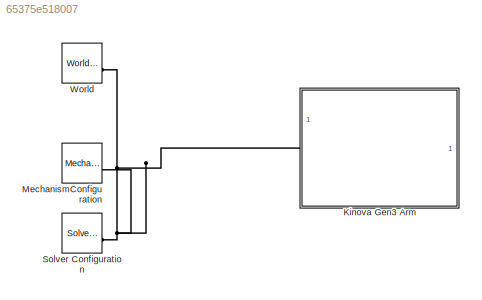
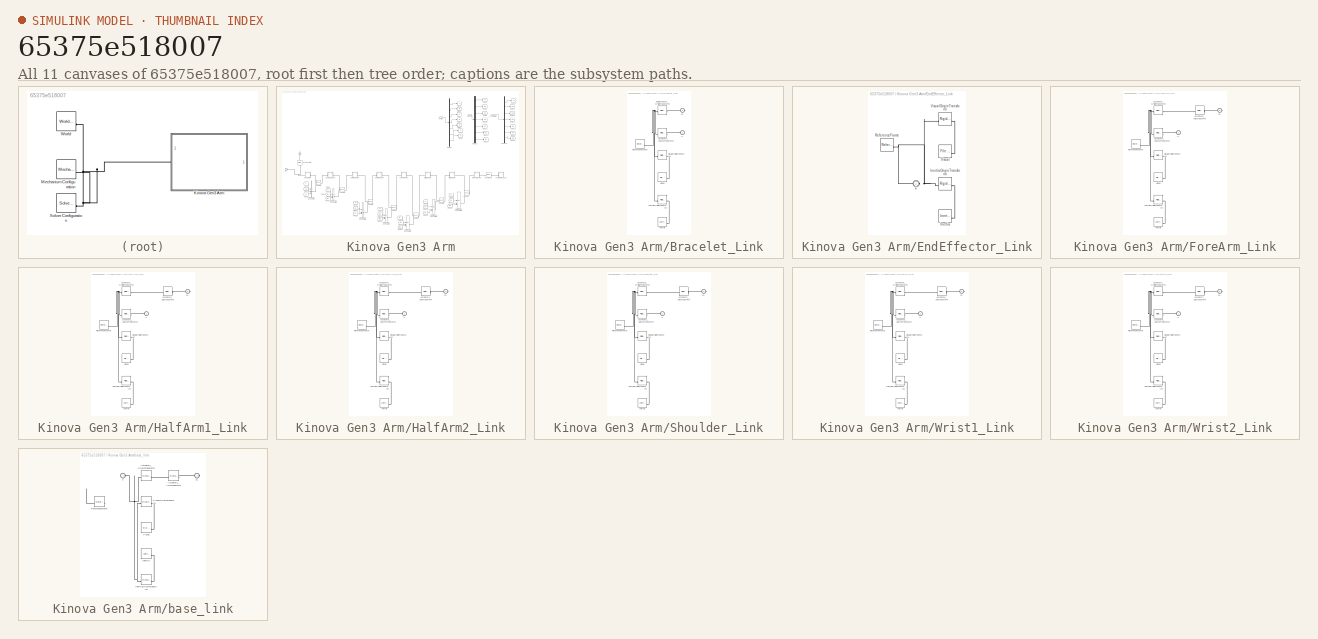
[diagram: thumbnail index - all 11 canvases of the model, root first then tree order]
MODEL slx_65375e518007
KIND model
CONFIG AbsTol = 1e-3
CONFIG EnableMultiTasking = off
CONFIG FixedStep = auto
CONFIG MaxStep = auto
CONFIG MinStep = auto
CONFIG RelTol = 1e-3
CONFIG SampleTimeConstraint = Unconstrained
CONFIG SolverName = ode23t
CONFIG StartTime = 0.0
CONFIG StopTime = 20
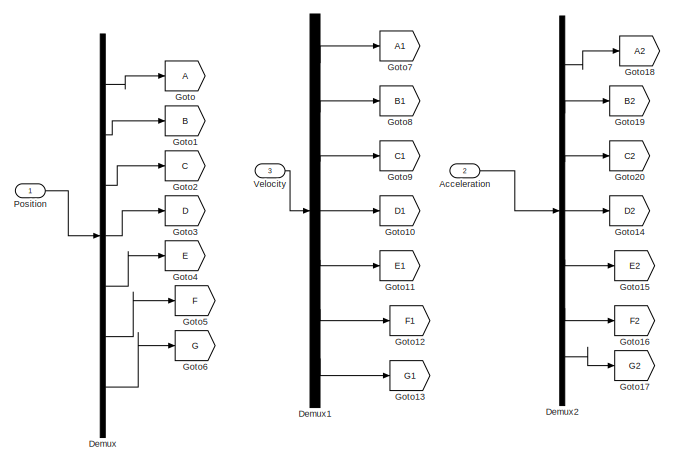
[diagram: Kinova Gen3 Arm - part 1/3, top right region]
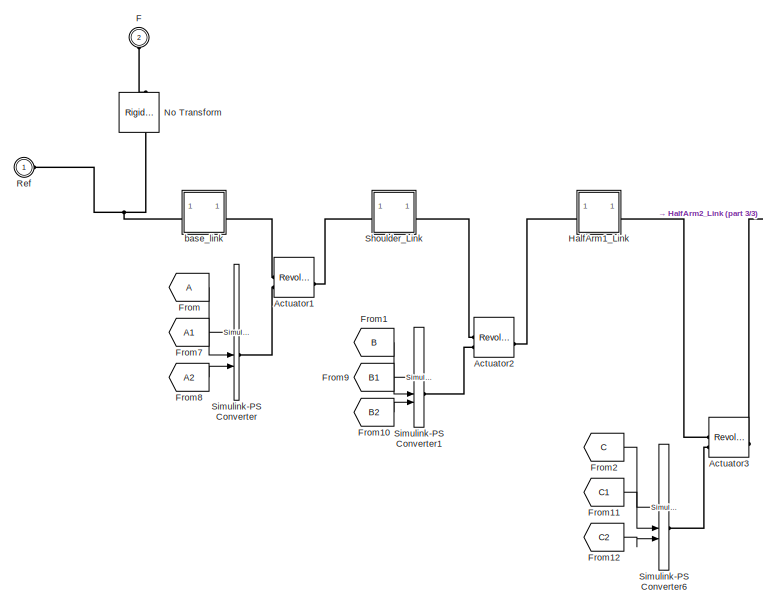
[diagram: Kinova Gen3 Arm - part 2/3, middle left region]
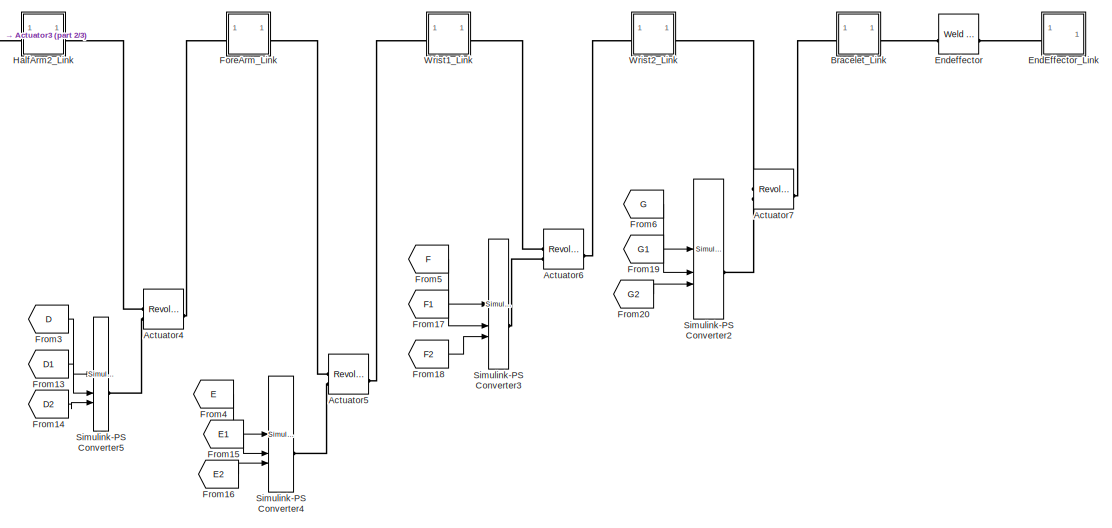
[diagram: Kinova Gen3 Arm - part 3/3, bottom right region]
BLOCK [SubSystem] Kinova Gen3 Arm
  PortSchema = {"entries":[{"content":{"sides":[{"content":{"connectorIds":["LConn1","LConn2","In1","In2","In3"]},"type":"ConnectorPlacement.EquallySpacedRectSide","uuid":"fd4ff3f1-2171-4bf8-9495-f9a61fe79dd1"},{"content":{"side":"RIGHT"},"type":"ConnectorPlacement.EquallySpacedRectSide","uuid":"35ab6517-a5c7-461c-baa3-bdccce69e86b"},{"content":{"side":"TOP"},"type":"ConnectorPlacement.EquallySpacedRectSide","uu...<+228ch>
BLOCK [Inport] Kinova Gen3 Arm/Acceleration
  Port = 2
BLOCK [Reference] Kinova Gen3 Arm/Actuator1  REF=sm_lib/Joints/Revolute Joint
  SourceBlock = sm_lib/Joints/Revolute Joint
  SourceType = Revolute Joint
BLOCK [Reference] Kinova Gen3 Arm/Actuator2  REF=sm_lib/Joints/Revolute Joint
  SourceBlock = sm_lib/Joints/Revolute Joint
  SourceType = Revolute Joint
BLOCK [Reference] Kinova Gen3 Arm/Actuator3  REF=sm_lib/Joints/Revolute Joint
  SourceBlock = sm_lib/Joints/Revolute Joint
  SourceType = Revolute Joint
BLOCK [Reference] Kinova Gen3 Arm/Actuator4  REF=sm_lib/Joints/Revolute Joint
  SourceBlock = sm_lib/Joints/Revolute Joint
  SourceType = Revolute Joint
BLOCK [Reference] Kinova Gen3 Arm/Actuator5  REF=sm_lib/Joints/Revolute Joint
  SourceBlock = sm_lib/Joints/Revolute Joint
  SourceType = Revolute Joint
BLOCK [Reference] Kinova Gen3 Arm/Actuator6  REF=sm_lib/Joints/Revolute Joint
  SourceBlock = sm_lib/Joints/Revolute Joint
  SourceType = Revolute Joint
BLOCK [Reference] Kinova Gen3 Arm/Actuator7  REF=sm_lib/Joints/Revolute Joint
  SourceBlock = sm_lib/Joints/Revolute Joint
  SourceType = Revolute Joint
BLOCK [SubSystem] Kinova Gen3 Arm/Bracelet_Link
BLOCK [Reference] Kinova Gen3 Arm/Bracelet_Link/Actuator7_AxisInvTransform  REF=sm_lib/Frames and
Transforms/Rigid
Transform
  SourceBlock = sm_lib/Frames and\nTransforms/Rigid\nTransform
  SourceType = Rigid\nTransform
BLOCK [Reference] Kinova Gen3 Arm/Bracelet_Link/Endeffector_OriginTransform  REF=sm_lib/Frames and
Transforms/Rigid
Transform
  SourceBlock = sm_lib/Frames and\nTransforms/Rigid\nTransform
  SourceType = Rigid\nTransform
BLOCK [PMIOPort] Kinova Gen3 Arm/Bracelet_Link/F
  Side = Left
BLOCK [PMIOPort] Kinova Gen3 Arm/Bracelet_Link/F1
  Port = 2
  Side = Right
BLOCK [Reference] Kinova Gen3 Arm/Bracelet_Link/Inertia  REF=sm_lib/Body Elements/Inertia
  SourceBlock = sm_lib/Body Elements/Inertia
  SourceType = Inertia
BLOCK [Reference] Kinova Gen3 Arm/Bracelet_Link/InertiaOriginTransform  REF=sm_lib/Frames and
Transforms/Rigid
Transform
  SourceBlock = sm_lib/Frames and\nTransforms/Rigid\nTransform
  SourceType = Rigid\nTransform
BLOCK [Reference] Kinova Gen3 Arm/Bracelet_Link/ReferenceFrame  REF=sm_lib/Frames and
Transforms/Reference
Frame
  SourceBlock = sm_lib/Frames and\nTransforms/Reference\nFrame
  SourceType = Reference\nFrame
BLOCK [Reference] Kinova Gen3 Arm/Bracelet_Link/Visual  REF=sm_lib/Body Elements/File Solid
  SourceBlock = sm_lib/Body Elements/File Solid
  SourceType = File Solid
BLOCK [Reference] Kinova Gen3 Arm/Bracelet_Link/VisualOriginTransform  REF=sm_lib/Frames and
Transforms/Rigid
Transform
  SourceBlock = sm_lib/Frames and\nTransforms/Rigid\nTransform
  SourceType = Rigid\nTransform
BLOCK [Demux] Kinova Gen3 Arm/Demux
  Outputs = 7
BLOCK [Demux] Kinova Gen3 Arm/Demux1
  Outputs = 7
BLOCK [Demux] Kinova Gen3 Arm/Demux2
  Outputs = 7
BLOCK [SubSystem] Kinova Gen3 Arm/EndEffector_Link
BLOCK [PMIOPort] Kinova Gen3 Arm/EndEffector_Link/F
  Side = Left
BLOCK [Reference] Kinova Gen3 Arm/EndEffector_Link/Inertia  REF=sm_lib/Body Elements/Inertia
  SourceBlock = sm_lib/Body Elements/Inertia
  SourceType = Inertia
BLOCK [Reference] Kinova Gen3 Arm/EndEffector_Link/InertiaOriginTransform  REF=sm_lib/Frames and
Transforms/Rigid
Transform
  SourceBlock = sm_lib/Frames and\nTransforms/Rigid\nTransform
  SourceType = Rigid\nTransform
BLOCK [Reference] Kinova Gen3 Arm/EndEffector_Link/ReferenceFrame  REF=sm_lib/Frames and
Transforms/Reference
Frame
  SourceBlock = sm_lib/Frames and\nTransforms/Reference\nFrame
  SourceType = Reference\nFrame
BLOCK [Reference] Kinova Gen3 Arm/EndEffector_Link/Visual  REF=sm_lib/Body Elements/File Solid
  SourceBlock = sm_lib/Body Elements/File Solid
  SourceType = File Solid
BLOCK [Reference] Kinova Gen3 Arm/EndEffector_Link/VisualOriginTransform  REF=sm_lib/Frames and
Transforms/Rigid
Transform
  SourceBlock = sm_lib/Frames and\nTransforms/Rigid\nTransform
  SourceType = Rigid\nTransform
BLOCK [Reference] Kinova Gen3 Arm/Endeffector  REF=sm_lib/Joints/Weld Joint
  SourceBlock = sm_lib/Joints/Weld Joint
  SourceType = Weld Joint
BLOCK [PMIOPort] Kinova Gen3 Arm/F
  NameLocation = right
  Port = 2
  Side = Left
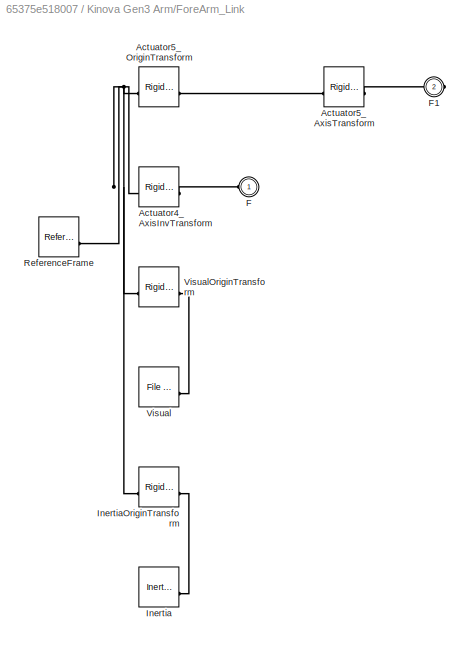
BLOCK [SubSystem] Kinova Gen3 Arm/ForeArm_Link
BLOCK [Reference] Kinova Gen3 Arm/ForeArm_Link/Actuator4_AxisInvTransform  REF=sm_lib/Frames and
Transforms/Rigid
Transform
  SourceBlock = sm_lib/Frames and\nTransforms/Rigid\nTransform
  SourceType = Rigid\nTransform
BLOCK [Reference] Kinova Gen3 Arm/ForeArm_Link/Actuator5_AxisTransform  REF=sm_lib/Frames and
Transforms/Rigid
Transform
  SourceBlock = sm_lib/Frames and\nTransforms/Rigid\nTransform
  SourceType = Rigid\nTransform
BLOCK [Reference] Kinova Gen3 Arm/ForeArm_Link/Actuator5_OriginTransform  REF=sm_lib/Frames and
Transforms/Rigid
Transform
  SourceBlock = sm_lib/Frames and\nTransforms/Rigid\nTransform
  SourceType = Rigid\nTransform
BLOCK [PMIOPort] Kinova Gen3 Arm/ForeArm_Link/F
  Side = Left
BLOCK [PMIOPort] Kinova Gen3 Arm/ForeArm_Link/F1
  Port = 2
  Side = Right
BLOCK [Reference] Kinova Gen3 Arm/ForeArm_Link/Inertia  REF=sm_lib/Body Elements/Inertia
  SourceBlock = sm_lib/Body Elements/Inertia
  SourceType = Inertia
BLOCK [Reference] Kinova Gen3 Arm/ForeArm_Link/InertiaOriginTransform  REF=sm_lib/Frames and
Transforms/Rigid
Transform
  SourceBlock = sm_lib/Frames and\nTransforms/Rigid\nTransform
  SourceType = Rigid\nTransform
BLOCK [Reference] Kinova Gen3 Arm/ForeArm_Link/ReferenceFrame  REF=sm_lib/Frames and
Transforms/Reference
Frame
  SourceBlock = sm_lib/Frames and\nTransforms/Reference\nFrame
  SourceType = Reference\nFrame
BLOCK [Reference] Kinova Gen3 Arm/ForeArm_Link/Visual  REF=sm_lib/Body Elements/File Solid
  SourceBlock = sm_lib/Body Elements/File Solid
  SourceType = File Solid
BLOCK [Reference] Kinova Gen3 Arm/ForeArm_Link/VisualOriginTransform  REF=sm_lib/Frames and
Transforms/Rigid
Transform
  SourceBlock = sm_lib/Frames and\nTransforms/Rigid\nTransform
  SourceType = Rigid\nTransform
BLOCK [From] Kinova Gen3 Arm/From
BLOCK [From] Kinova Gen3 Arm/From1
  GotoTag = B
BLOCK [From] Kinova Gen3 Arm/From10
  GotoTag = B2
BLOCK [From] Kinova Gen3 Arm/From11
  GotoTag = C1
BLOCK [From] Kinova Gen3 Arm/From12
  GotoTag = C2
BLOCK [From] Kinova Gen3 Arm/From13
  GotoTag = D1
BLOCK [From] Kinova Gen3 Arm/From14
  GotoTag = D2
BLOCK [From] Kinova Gen3 Arm/From15
  GotoTag = E1
BLOCK [From] Kinova Gen3 Arm/From16
  GotoTag = E2
BLOCK [From] Kinova Gen3 Arm/From17
  GotoTag = F1
BLOCK [From] Kinova Gen3 Arm/From18
  GotoTag = F2
BLOCK [From] Kinova Gen3 Arm/From19
  GotoTag = G1
BLOCK [From] Kinova Gen3 Arm/From2
  GotoTag = C
BLOCK [From] Kinova Gen3 Arm/From20
  GotoTag = G2
BLOCK [From] Kinova Gen3 Arm/From3
  GotoTag = D
BLOCK [From] Kinova Gen3 Arm/From4
  GotoTag = E
BLOCK [From] Kinova Gen3 Arm/From5
  GotoTag = F
BLOCK [From] Kinova Gen3 Arm/From6
  GotoTag = G
BLOCK [From] Kinova Gen3 Arm/From7
  GotoTag = A1
BLOCK [From] Kinova Gen3 Arm/From8
  GotoTag = A2
BLOCK [From] Kinova Gen3 Arm/From9
  GotoTag = B1
BLOCK [Goto] Kinova Gen3 Arm/Goto
BLOCK [Goto] Kinova Gen3 Arm/Goto1
  GotoTag = B
BLOCK [Goto] Kinova Gen3 Arm/Goto10
  GotoTag = D1
BLOCK [Goto] Kinova Gen3 Arm/Goto11
  GotoTag = E1
BLOCK [Goto] Kinova Gen3 Arm/Goto12
  GotoTag = F1
BLOCK [Goto] Kinova Gen3 Arm/Goto13
  GotoTag = G1
BLOCK [Goto] Kinova Gen3 Arm/Goto14
  GotoTag = D2
BLOCK [Goto] Kinova Gen3 Arm/Goto15
  GotoTag = E2
BLOCK [Goto] Kinova Gen3 Arm/Goto16
  GotoTag = F2
BLOCK [Goto] Kinova Gen3 Arm/Goto17
  GotoTag = G2
BLOCK [Goto] Kinova Gen3 Arm/Goto18
  GotoTag = A2
BLOCK [Goto] Kinova Gen3 Arm/Goto19
  GotoTag = B2
BLOCK [Goto] Kinova Gen3 Arm/Goto2
  GotoTag = C
BLOCK [Goto] Kinova Gen3 Arm/Goto20
  GotoTag = C2
BLOCK [Goto] Kinova Gen3 Arm/Goto3
  GotoTag = D
BLOCK [Goto] Kinova Gen3 Arm/Goto4
  GotoTag = E
BLOCK [Goto] Kinova Gen3 Arm/Goto5
  GotoTag = F
BLOCK [Goto] Kinova Gen3 Arm/Goto6
  GotoTag = G
BLOCK [Goto] Kinova Gen3 Arm/Goto7
  GotoTag = A1
BLOCK [Goto] Kinova Gen3 Arm/Goto8
  GotoTag = B1
BLOCK [Goto] Kinova Gen3 Arm/Goto9
  GotoTag = C1
BLOCK [SubSystem] Kinova Gen3 Arm/HalfArm1_Link
BLOCK [Reference] Kinova Gen3 Arm/HalfArm1_Link/Actuator2_AxisInvTransform  REF=sm_lib/Frames and
Transforms/Rigid
Transform
  SourceBlock = sm_lib/Frames and\nTransforms/Rigid\nTransform
  SourceType = Rigid\nTransform
BLOCK [Reference] Kinova Gen3 Arm/HalfArm1_Link/Actuator3_AxisTransform  REF=sm_lib/Frames and
Transforms/Rigid
Transform
  SourceBlock = sm_lib/Frames and\nTransforms/Rigid\nTransform
  SourceType = Rigid\nTransform
BLOCK [Reference] Kinova Gen3 Arm/HalfArm1_Link/Actuator3_OriginTransform  REF=sm_lib/Frames and
Transforms/Rigid
Transform
  SourceBlock = sm_lib/Frames and\nTransforms/Rigid\nTransform
  SourceType = Rigid\nTransform
BLOCK [PMIOPort] Kinova Gen3 Arm/HalfArm1_Link/F
  Side = Left
BLOCK [PMIOPort] Kinova Gen3 Arm/HalfArm1_Link/F1
  Port = 2
  Side = Right
BLOCK [Reference] Kinova Gen3 Arm/HalfArm1_Link/Inertia  REF=sm_lib/Body Elements/Inertia
  SourceBlock = sm_lib/Body Elements/Inertia
  SourceType = Inertia
BLOCK [Reference] Kinova Gen3 Arm/HalfArm1_Link/InertiaOriginTransform  REF=sm_lib/Frames and
Transforms/Rigid
Transform
  SourceBlock = sm_lib/Frames and\nTransforms/Rigid\nTransform
  SourceType = Rigid\nTransform
BLOCK [Reference] Kinova Gen3 Arm/HalfArm1_Link/ReferenceFrame  REF=sm_lib/Frames and
Transforms/Reference
Frame
  SourceBlock = sm_lib/Frames and\nTransforms/Reference\nFrame
  SourceType = Reference\nFrame
BLOCK [Reference] Kinova Gen3 Arm/HalfArm1_Link/Visual  REF=sm_lib/Body Elements/File Solid
  SourceBlock = sm_lib/Body Elements/File Solid
  SourceType = File Solid
BLOCK [Reference] Kinova Gen3 Arm/HalfArm1_Link/VisualOriginTransform  REF=sm_lib/Frames and
Transforms/Rigid
Transform
  SourceBlock = sm_lib/Frames and\nTransforms/Rigid\nTransform
  SourceType = Rigid\nTransform
BLOCK [SubSystem] Kinova Gen3 Arm/HalfArm2_Link
BLOCK [Reference] Kinova Gen3 Arm/HalfArm2_Link/Actuator3_AxisInvTransform  REF=sm_lib/Frames and
Transforms/Rigid
Transform
  SourceBlock = sm_lib/Frames and\nTransforms/Rigid\nTransform
  SourceType = Rigid\nTransform
BLOCK [Reference] Kinova Gen3 Arm/HalfArm2_Link/Actuator4_AxisTransform  REF=sm_lib/Frames and
Transforms/Rigid
Transform
  SourceBlock = sm_lib/Frames and\nTransforms/Rigid\nTransform
  SourceType = Rigid\nTransform
BLOCK [Reference] Kinova Gen3 Arm/HalfArm2_Link/Actuator4_OriginTransform  REF=sm_lib/Frames and
Transforms/Rigid
Transform
  SourceBlock = sm_lib/Frames and\nTransforms/Rigid\nTransform
  SourceType = Rigid\nTransform
BLOCK [PMIOPort] Kinova Gen3 Arm/HalfArm2_Link/F
  Side = Left
BLOCK [PMIOPort] Kinova Gen3 Arm/HalfArm2_Link/F1
  Port = 2
  Side = Right
BLOCK [Reference] Kinova Gen3 Arm/HalfArm2_Link/Inertia  REF=sm_lib/Body Elements/Inertia
  SourceBlock = sm_lib/Body Elements/Inertia
  SourceType = Inertia
BLOCK [Reference] Kinova Gen3 Arm/HalfArm2_Link/InertiaOriginTransform  REF=sm_lib/Frames and
Transforms/Rigid
Transform
  SourceBlock = sm_lib/Frames and\nTransforms/Rigid\nTransform
  SourceType = Rigid\nTransform
BLOCK [Reference] Kinova Gen3 Arm/HalfArm2_Link/ReferenceFrame  REF=sm_lib/Frames and
Transforms/Reference
Frame
  SourceBlock = sm_lib/Frames and\nTransforms/Reference\nFrame
  SourceType = Reference\nFrame
BLOCK [Reference] Kinova Gen3 Arm/HalfArm2_Link/Visual  REF=sm_lib/Body Elements/File Solid
  SourceBlock = sm_lib/Body Elements/File Solid
  SourceType = File Solid
BLOCK [Reference] Kinova Gen3 Arm/HalfArm2_Link/VisualOriginTransform  REF=sm_lib/Frames and
Transforms/Rigid
Transform
  SourceBlock = sm_lib/Frames and\nTransforms/Rigid\nTransform
  SourceType = Rigid\nTransform
BLOCK [Reference] Kinova Gen3 Arm/No Transform  REF=sm_lib/Frames and
Transforms/Rigid
Transform
  NameLocation = right
  SourceBlock = sm_lib/Frames and\nTransforms/Rigid\nTransform
  SourceType = Rigid\nTransform
BLOCK [Inport] Kinova Gen3 Arm/Position
BLOCK [PMIOPort] Kinova Gen3 Arm/Ref
  NameLocation = top
  Side = Left
BLOCK [SubSystem] Kinova Gen3 Arm/Shoulder_Link
BLOCK [Reference] Kinova Gen3 Arm/Shoulder_Link/Actuator1_AxisInvTransform  REF=sm_lib/Frames and
Transforms/Rigid
Transform
  SourceBlock = sm_lib/Frames and\nTransforms/Rigid\nTransform
  SourceType = Rigid\nTransform
BLOCK [Reference] Kinova Gen3 Arm/Shoulder_Link/Actuator2_AxisTransform  REF=sm_lib/Frames and
Transforms/Rigid
Transform
  SourceBlock = sm_lib/Frames and\nTransforms/Rigid\nTransform
  SourceType = Rigid\nTransform
BLOCK [Reference] Kinova Gen3 Arm/Shoulder_Link/Actuator2_OriginTransform  REF=sm_lib/Frames and
Transforms/Rigid
Transform
  SourceBlock = sm_lib/Frames and\nTransforms/Rigid\nTransform
  SourceType = Rigid\nTransform
BLOCK [PMIOPort] Kinova Gen3 Arm/Shoulder_Link/F
  Side = Left
BLOCK [PMIOPort] Kinova Gen3 Arm/Shoulder_Link/F1
  Port = 2
  Side = Right
BLOCK [Reference] Kinova Gen3 Arm/Shoulder_Link/Inertia  REF=sm_lib/Body Elements/Inertia
  SourceBlock = sm_lib/Body Elements/Inertia
  SourceType = Inertia
BLOCK [Reference] Kinova Gen3 Arm/Shoulder_Link/InertiaOriginTransform  REF=sm_lib/Frames and
Transforms/Rigid
Transform
  SourceBlock = sm_lib/Frames and\nTransforms/Rigid\nTransform
  SourceType = Rigid\nTransform
BLOCK [Reference] Kinova Gen3 Arm/Shoulder_Link/ReferenceFrame  REF=sm_lib/Frames and
Transforms/Reference
Frame
  SourceBlock = sm_lib/Frames and\nTransforms/Reference\nFrame
  SourceType = Reference\nFrame
BLOCK [Reference] Kinova Gen3 Arm/Shoulder_Link/Visual  REF=sm_lib/Body Elements/File Solid
  SourceBlock = sm_lib/Body Elements/File Solid
  SourceType = File Solid
BLOCK [Reference] Kinova Gen3 Arm/Shoulder_Link/VisualOriginTransform  REF=sm_lib/Frames and
Transforms/Rigid
Transform
  SourceBlock = sm_lib/Frames and\nTransforms/Rigid\nTransform
  SourceType = Rigid\nTransform
BLOCK [Reference] Kinova Gen3 Arm/Simulink-PS Converter  REF=nesl_utility/Simulink-PS
Converter
  SourceBlock = nesl_utility/Simulink-PS\nConverter
  SourceType = Simulink-PS\nConverter
BLOCK [Reference] Kinova Gen3 Arm/Simulink-PS Converter1  REF=nesl_utility/Simulink-PS
Converter
  SourceBlock = nesl_utility/Simulink-PS\nConverter
  SourceType = Simulink-PS\nConverter
BLOCK [Reference] Kinova Gen3 Arm/Simulink-PS Converter2  REF=nesl_utility/Simulink-PS
Converter
  SourceBlock = nesl_utility/Simulink-PS\nConverter
  SourceType = Simulink-PS\nConverter
BLOCK [Reference] Kinova Gen3 Arm/Simulink-PS Converter3  REF=nesl_utility/Simulink-PS
Converter
  SourceBlock = nesl_utility/Simulink-PS\nConverter
  SourceType = Simulink-PS\nConverter
BLOCK [Reference] Kinova Gen3 Arm/Simulink-PS Converter4  REF=nesl_utility/Simulink-PS
Converter
  SourceBlock = nesl_utility/Simulink-PS\nConverter
  SourceType = Simulink-PS\nConverter
BLOCK [Reference] Kinova Gen3 Arm/Simulink-PS Converter5  REF=nesl_utility/Simulink-PS
Converter
  SourceBlock = nesl_utility/Simulink-PS\nConverter
  SourceType = Simulink-PS\nConverter
BLOCK [Reference] Kinova Gen3 Arm/Simulink-PS Converter6  REF=nesl_utility/Simulink-PS
Converter
  SourceBlock = nesl_utility/Simulink-PS\nConverter
  SourceType = Simulink-PS\nConverter
BLOCK [Inport] Kinova Gen3 Arm/Velocity
  Port = 3
BLOCK [SubSystem] Kinova Gen3 Arm/Wrist1_Link
BLOCK [Reference] Kinova Gen3 Arm/Wrist1_Link/Actuator5_AxisInvTransform  REF=sm_lib/Frames and
Transforms/Rigid
Transform
  SourceBlock = sm_lib/Frames and\nTransforms/Rigid\nTransform
  SourceType = Rigid\nTransform
BLOCK [Reference] Kinova Gen3 Arm/Wrist1_Link/Actuator6_AxisTransform  REF=sm_lib/Frames and
Transforms/Rigid
Transform
  SourceBlock = sm_lib/Frames and\nTransforms/Rigid\nTransform
  SourceType = Rigid\nTransform
BLOCK [Reference] Kinova Gen3 Arm/Wrist1_Link/Actuator6_OriginTransform  REF=sm_lib/Frames and
Transforms/Rigid
Transform
  SourceBlock = sm_lib/Frames and\nTransforms/Rigid\nTransform
  SourceType = Rigid\nTransform
BLOCK [PMIOPort] Kinova Gen3 Arm/Wrist1_Link/F
  Side = Left
BLOCK [PMIOPort] Kinova Gen3 Arm/Wrist1_Link/F1
  Port = 2
  Side = Right
BLOCK [Reference] Kinova Gen3 Arm/Wrist1_Link/Inertia  REF=sm_lib/Body Elements/Inertia
  SourceBlock = sm_lib/Body Elements/Inertia
  SourceType = Inertia
BLOCK [Reference] Kinova Gen3 Arm/Wrist1_Link/InertiaOriginTransform  REF=sm_lib/Frames and
Transforms/Rigid
Transform
  SourceBlock = sm_lib/Frames and\nTransforms/Rigid\nTransform
  SourceType = Rigid\nTransform
BLOCK [Reference] Kinova Gen3 Arm/Wrist1_Link/ReferenceFrame  REF=sm_lib/Frames and
Transforms/Reference
Frame
  SourceBlock = sm_lib/Frames and\nTransforms/Reference\nFrame
  SourceType = Reference\nFrame
BLOCK [Reference] Kinova Gen3 Arm/Wrist1_Link/Visual  REF=sm_lib/Body Elements/File Solid
  SourceBlock = sm_lib/Body Elements/File Solid
  SourceType = File Solid
BLOCK [Reference] Kinova Gen3 Arm/Wrist1_Link/VisualOriginTransform  REF=sm_lib/Frames and
Transforms/Rigid
Transform
  SourceBlock = sm_lib/Frames and\nTransforms/Rigid\nTransform
  SourceType = Rigid\nTransform
BLOCK [SubSystem] Kinova Gen3 Arm/Wrist2_Link
BLOCK [Reference] Kinova Gen3 Arm/Wrist2_Link/Actuator6_AxisInvTransform  REF=sm_lib/Frames and
Transforms/Rigid
Transform
  SourceBlock = sm_lib/Frames and\nTransforms/Rigid\nTransform
  SourceType = Rigid\nTransform
BLOCK [Reference] Kinova Gen3 Arm/Wrist2_Link/Actuator7_AxisTransform  REF=sm_lib/Frames and
Transforms/Rigid
Transform
  SourceBlock = sm_lib/Frames and\nTransforms/Rigid\nTransform
  SourceType = Rigid\nTransform
BLOCK [Reference] Kinova Gen3 Arm/Wrist2_Link/Actuator7_OriginTransform  REF=sm_lib/Frames and
Transforms/Rigid
Transform
  SourceBlock = sm_lib/Frames and\nTransforms/Rigid\nTransform
  SourceType = Rigid\nTransform
BLOCK [PMIOPort] Kinova Gen3 Arm/Wrist2_Link/F
  Side = Left
BLOCK [PMIOPort] Kinova Gen3 Arm/Wrist2_Link/F1
  Port = 2
  Side = Right
BLOCK [Reference] Kinova Gen3 Arm/Wrist2_Link/Inertia  REF=sm_lib/Body Elements/Inertia
  SourceBlock = sm_lib/Body Elements/Inertia
  SourceType = Inertia
BLOCK [Reference] Kinova Gen3 Arm/Wrist2_Link/InertiaOriginTransform  REF=sm_lib/Frames and
Transforms/Rigid
Transform
  SourceBlock = sm_lib/Frames and\nTransforms/Rigid\nTransform
  SourceType = Rigid\nTransform
BLOCK [Reference] Kinova Gen3 Arm/Wrist2_Link/ReferenceFrame  REF=sm_lib/Frames and
Transforms/Reference
Frame
  SourceBlock = sm_lib/Frames and\nTransforms/Reference\nFrame
  SourceType = Reference\nFrame
BLOCK [Reference] Kinova Gen3 Arm/Wrist2_Link/Visual  REF=sm_lib/Body Elements/File Solid
  SourceBlock = sm_lib/Body Elements/File Solid
  SourceType = File Solid
BLOCK [Reference] Kinova Gen3 Arm/Wrist2_Link/VisualOriginTransform  REF=sm_lib/Frames and
Transforms/Rigid
Transform
  SourceBlock = sm_lib/Frames and\nTransforms/Rigid\nTransform
  SourceType = Rigid\nTransform
BLOCK [SubSystem] Kinova Gen3 Arm/base_link
BLOCK [Reference] Kinova Gen3 Arm/base_link/Actuator1_AxisTransform  REF=sm_lib/Frames and
Transforms/Rigid
Transform
  SourceBlock = sm_lib/Frames and\nTransforms/Rigid\nTransform
  SourceType = Rigid\nTransform
BLOCK [Reference] Kinova Gen3 Arm/base_link/Actuator1_OriginTransform  REF=sm_lib/Frames and
Transforms/Rigid
Transform
  SourceBlock = sm_lib/Frames and\nTransforms/Rigid\nTransform
  SourceType = Rigid\nTransform
BLOCK [PMIOPort] Kinova Gen3 Arm/base_link/F
  Side = Left
BLOCK [PMIOPort] Kinova Gen3 Arm/base_link/F1
  Port = 2
  Side = Right
BLOCK [Reference] Kinova Gen3 Arm/base_link/Inertia  REF=sm_lib/Body Elements/Inertia
  SourceBlock = sm_lib/Body Elements/Inertia
  SourceType = Inertia
BLOCK [Reference] Kinova Gen3 Arm/base_link/InertiaOriginTransform  REF=sm_lib/Frames and
Transforms/Rigid
Transform
  SourceBlock = sm_lib/Frames and\nTransforms/Rigid\nTransform
  SourceType = Rigid\nTransform
BLOCK [Reference] Kinova Gen3 Arm/base_link/ReferenceFrame  REF=sm_lib/Frames and
Transforms/Reference
Frame
  SourceBlock = sm_lib/Frames and\nTransforms/Reference\nFrame
  SourceType = Reference\nFrame
BLOCK [Reference] Kinova Gen3 Arm/base_link/Visual  REF=sm_lib/Body Elements/File Solid
  SourceBlock = sm_lib/Body Elements/File Solid
  SourceType = File Solid
BLOCK [Reference] Kinova Gen3 Arm/base_link/VisualOriginTransform  REF=sm_lib/Frames and
Transforms/Rigid
Transform
  SourceBlock = sm_lib/Frames and\nTransforms/Rigid\nTransform
  SourceType = Rigid\nTransform
BLOCK [Reference] MechanismConfiguration  REF=sm_lib/Utilities/Mechanism
Configuration
  SourceBlock = sm_lib/Utilities/Mechanism\nConfiguration
  SourceType = Mechanism\nConfiguration
BLOCK [Reference] Solver Configuration  REF=nesl_utility/Solver
Configuration
  SourceBlock = nesl_utility/Solver\nConfiguration
  SourceType = Solver\nConfiguration
BLOCK [Reference] World  REF=sm_lib/Frames and
Transforms/World Frame
  SourceBlock = sm_lib/Frames and\nTransforms/World Frame
  SourceType = World Frame
LINE Kinova Gen3 Arm/Acceleration:1 -> Kinova Gen3 Arm/Demux2:1
LINE Kinova Gen3 Arm/Demux1:1 -> Kinova Gen3 Arm/Goto7:1
LINE Kinova Gen3 Arm/Demux1:2 -> Kinova Gen3 Arm/Goto8:1
LINE Kinova Gen3 Arm/Demux1:3 -> Kinova Gen3 Arm/Goto9:1
LINE Kinova Gen3 Arm/Demux1:4 -> Kinova Gen3 Arm/Goto10:1
LINE Kinova Gen3 Arm/Demux1:5 -> Kinova Gen3 Arm/Goto11:1
LINE Kinova Gen3 Arm/Demux1:6 -> Kinova Gen3 Arm/Goto12:1
LINE Kinova Gen3 Arm/Demux1:7 -> Kinova Gen3 Arm/Goto13:1
LINE Kinova Gen3 Arm/Demux2:1 -> Kinova Gen3 Arm/Goto18:1
LINE Kinova Gen3 Arm/Demux2:2 -> Kinova Gen3 Arm/Goto19:1
LINE Kinova Gen3 Arm/Demux2:3 -> Kinova Gen3 Arm/Goto20:1
LINE Kinova Gen3 Arm/Demux2:4 -> Kinova Gen3 Arm/Goto14:1
LINE Kinova Gen3 Arm/Demux2:5 -> Kinova Gen3 Arm/Goto15:1
LINE Kinova Gen3 Arm/Demux2:6 -> Kinova Gen3 Arm/Goto16:1
LINE Kinova Gen3 Arm/Demux2:7 -> Kinova Gen3 Arm/Goto17:1
LINE Kinova Gen3 Arm/Demux:1 -> Kinova Gen3 Arm/Goto:1
LINE Kinova Gen3 Arm/Demux:2 -> Kinova Gen3 Arm/Goto1:1
LINE Kinova Gen3 Arm/Demux:3 -> Kinova Gen3 Arm/Goto2:1
LINE Kinova Gen3 Arm/Demux:4 -> Kinova Gen3 Arm/Goto3:1
LINE Kinova Gen3 Arm/Demux:5 -> Kinova Gen3 Arm/Goto4:1
LINE Kinova Gen3 Arm/Demux:6 -> Kinova Gen3 Arm/Goto5:1
LINE Kinova Gen3 Arm/Demux:7 -> Kinova Gen3 Arm/Goto6:1
LINE Kinova Gen3 Arm/From10:1 -> Kinova Gen3 Arm/Simulink-PS Converter1:3
LINE Kinova Gen3 Arm/From11:1 -> Kinova Gen3 Arm/Simulink-PS Converter6:2
LINE Kinova Gen3 Arm/From12:1 -> Kinova Gen3 Arm/Simulink-PS Converter6:3
LINE Kinova Gen3 Arm/From13:1 -> Kinova Gen3 Arm/Simulink-PS Converter5:2
LINE Kinova Gen3 Arm/From14:1 -> Kinova Gen3 Arm/Simulink-PS Converter5:3
LINE Kinova Gen3 Arm/From15:1 -> Kinova Gen3 Arm/Simulink-PS Converter4:2
LINE Kinova Gen3 Arm/From16:1 -> Kinova Gen3 Arm/Simulink-PS Converter4:3
LINE Kinova Gen3 Arm/From17:1 -> Kinova Gen3 Arm/Simulink-PS Converter3:2
LINE Kinova Gen3 Arm/From18:1 -> Kinova Gen3 Arm/Simulink-PS Converter3:3
LINE Kinova Gen3 Arm/From19:1 -> Kinova Gen3 Arm/Simulink-PS Converter2:2
LINE Kinova Gen3 Arm/From1:1 -> Kinova Gen3 Arm/Simulink-PS Converter1:1
LINE Kinova Gen3 Arm/From20:1 -> Kinova Gen3 Arm/Simulink-PS Converter2:3
LINE Kinova Gen3 Arm/From2:1 -> Kinova Gen3 Arm/Simulink-PS Converter6:1
LINE Kinova Gen3 Arm/From3:1 -> Kinova Gen3 Arm/Simulink-PS Converter5:1
LINE Kinova Gen3 Arm/From4:1 -> Kinova Gen3 Arm/Simulink-PS Converter4:1
LINE Kinova Gen3 Arm/From5:1 -> Kinova Gen3 Arm/Simulink-PS Converter3:1
LINE Kinova Gen3 Arm/From6:1 -> Kinova Gen3 Arm/Simulink-PS Converter2:1
LINE Kinova Gen3 Arm/From7:1 -> Kinova Gen3 Arm/Simulink-PS Converter:2
LINE Kinova Gen3 Arm/From8:1 -> Kinova Gen3 Arm/Simulink-PS Converter:3
LINE Kinova Gen3 Arm/From9:1 -> Kinova Gen3 Arm/Simulink-PS Converter1:2
LINE Kinova Gen3 Arm/From:1 -> Kinova Gen3 Arm/Simulink-PS Converter:1
LINE Kinova Gen3 Arm/Position:1 -> Kinova Gen3 Arm/Demux:1
LINE Kinova Gen3 Arm/Velocity:1 -> Kinova Gen3 Arm/Demux1:1
PLINE Kinova Gen3 Arm/Actuator1:LConn1 -- Kinova Gen3 Arm/base_link:RConn1
PLINE Kinova Gen3 Arm/Actuator1:LConn2 -- Kinova Gen3 Arm/Simulink-PS Converter:RConn1
PLINE Kinova Gen3 Arm/Actuator1:RConn1 -- Kinova Gen3 Arm/Shoulder_Link:LConn1
PLINE Kinova Gen3 Arm/Actuator2:LConn1 -- Kinova Gen3 Arm/Shoulder_Link:RConn1
PLINE Kinova Gen3 Arm/Actuator2:LConn2 -- Kinova Gen3 Arm/Simulink-PS Converter1:RConn1
PLINE Kinova Gen3 Arm/Actuator2:RConn1 -- Kinova Gen3 Arm/HalfArm1_Link:LConn1
PLINE Kinova Gen3 Arm/Actuator3:LConn1 -- Kinova Gen3 Arm/HalfArm1_Link:RConn1
PLINE Kinova Gen3 Arm/Actuator3:LConn2 -- Kinova Gen3 Arm/Simulink-PS Converter6:RConn1
PLINE Kinova Gen3 Arm/Actuator3:RConn1 -- Kinova Gen3 Arm/HalfArm2_Link:LConn1
PLINE Kinova Gen3 Arm/Actuator4:LConn1 -- Kinova Gen3 Arm/HalfArm2_Link:RConn1
PLINE Kinova Gen3 Arm/Actuator4:LConn2 -- Kinova Gen3 Arm/Simulink-PS Converter5:RConn1
PLINE Kinova Gen3 Arm/Actuator4:RConn1 -- Kinova Gen3 Arm/ForeArm_Link:LConn1
PLINE Kinova Gen3 Arm/Actuator5:LConn1 -- Kinova Gen3 Arm/ForeArm_Link:RConn1
PLINE Kinova Gen3 Arm/Actuator5:LConn2 -- Kinova Gen3 Arm/Simulink-PS Converter4:RConn1
PLINE Kinova Gen3 Arm/Actuator5:RConn1 -- Kinova Gen3 Arm/Wrist1_Link:LConn1
PLINE Kinova Gen3 Arm/Actuator6:LConn1 -- Kinova Gen3 Arm/Wrist1_Link:RConn1
PLINE Kinova Gen3 Arm/Actuator6:LConn2 -- Kinova Gen3 Arm/Simulink-PS Converter3:RConn1
PLINE Kinova Gen3 Arm/Actuator6:RConn1 -- Kinova Gen3 Arm/Wrist2_Link:LConn1
PLINE Kinova Gen3 Arm/Actuator7:LConn1 -- Kinova Gen3 Arm/Wrist2_Link:RConn1
PLINE Kinova Gen3 Arm/Actuator7:LConn2 -- Kinova Gen3 Arm/Simulink-PS Converter2:RConn1
PLINE Kinova Gen3 Arm/Actuator7:RConn1 -- Kinova Gen3 Arm/Bracelet_Link:LConn1
PNET net1: Kinova Gen3 Arm/Bracelet_Link/Actuator7_AxisInvTransform:LConn1 -- Kinova Gen3 Arm/Bracelet_Link/Endeffector_OriginTransform:LConn1 -- Kinova Gen3 Arm/Bracelet_Link/InertiaOriginTransform:LConn1 -- Kinova Gen3 Arm/Bracelet_Link/ReferenceFrame:RConn1 -- Kinova Gen3 Arm/Bracelet_Link/VisualOriginTransform:LConn1
PLINE Kinova Gen3 Arm/Bracelet_Link/Actuator7_AxisInvTransform:RConn1 -- Kinova Gen3 Arm/Bracelet_Link/F:RConn1
PLINE Kinova Gen3 Arm/Bracelet_Link/Endeffector_OriginTransform:RConn1 -- Kinova Gen3 Arm/Bracelet_Link/F1:RConn1
PLINE Kinova Gen3 Arm/Bracelet_Link/Inertia:RConn1 -- Kinova Gen3 Arm/Bracelet_Link/InertiaOriginTransform:RConn1
PLINE Kinova Gen3 Arm/Bracelet_Link/Visual:RConn1 -- Kinova Gen3 Arm/Bracelet_Link/VisualOriginTransform:RConn1
PLINE Kinova Gen3 Arm/Bracelet_Link:RConn1 -- Kinova Gen3 Arm/Endeffector:LConn1
PNET net2: Kinova Gen3 Arm/EndEffector_Link/F:RConn1 -- Kinova Gen3 Arm/EndEffector_Link/InertiaOriginTransform:LConn1 -- Kinova Gen3 Arm/EndEffector_Link/ReferenceFrame:RConn1 -- Kinova Gen3 Arm/EndEffector_Link/VisualOriginTransform:LConn1
PLINE Kinova Gen3 Arm/EndEffector_Link/Inertia:RConn1 -- Kinova Gen3 Arm/EndEffector_Link/InertiaOriginTransform:RConn1
PLINE Kinova Gen3 Arm/EndEffector_Link/Visual:RConn1 -- Kinova Gen3 Arm/EndEffector_Link/VisualOriginTransform:RConn1
PLINE Kinova Gen3 Arm/EndEffector_Link:LConn1 -- Kinova Gen3 Arm/Endeffector:RConn1
PLINE Kinova Gen3 Arm/F:RConn1 -- Kinova Gen3 Arm/No Transform:RConn1
PNET net3: Kinova Gen3 Arm/ForeArm_Link/Actuator4_AxisInvTransform:LConn1 -- Kinova Gen3 Arm/ForeArm_Link/Actuator5_OriginTransform:LConn1 -- Kinova Gen3 Arm/ForeArm_Link/InertiaOriginTransform:LConn1 -- Kinova Gen3 Arm/ForeArm_Link/ReferenceFrame:RConn1 -- Kinova Gen3 Arm/ForeArm_Link/VisualOriginTransform:LConn1
PLINE Kinova Gen3 Arm/ForeArm_Link/Actuator4_AxisInvTransform:RConn1 -- Kinova Gen3 Arm/ForeArm_Link/F:RConn1
PLINE Kinova Gen3 Arm/ForeArm_Link/Actuator5_AxisTransform:LConn1 -- Kinova Gen3 Arm/ForeArm_Link/Actuator5_OriginTransform:RConn1
PLINE Kinova Gen3 Arm/ForeArm_Link/Actuator5_AxisTransform:RConn1 -- Kinova Gen3 Arm/ForeArm_Link/F1:RConn1
PLINE Kinova Gen3 Arm/ForeArm_Link/Inertia:RConn1 -- Kinova Gen3 Arm/ForeArm_Link/InertiaOriginTransform:RConn1
PLINE Kinova Gen3 Arm/ForeArm_Link/Visual:RConn1 -- Kinova Gen3 Arm/ForeArm_Link/VisualOriginTransform:RConn1
PNET net4: Kinova Gen3 Arm/HalfArm1_Link/Actuator2_AxisInvTransform:LConn1 -- Kinova Gen3 Arm/HalfArm1_Link/Actuator3_OriginTransform:LConn1 -- Kinova Gen3 Arm/HalfArm1_Link/InertiaOriginTransform:LConn1 -- Kinova Gen3 Arm/HalfArm1_Link/ReferenceFrame:RConn1 -- Kinova Gen3 Arm/HalfArm1_Link/VisualOriginTransform:LConn1
PLINE Kinova Gen3 Arm/HalfArm1_Link/Actuator2_AxisInvTransform:RConn1 -- Kinova Gen3 Arm/HalfArm1_Link/F:RConn1
PLINE Kinova Gen3 Arm/HalfArm1_Link/Actuator3_AxisTransform:LConn1 -- Kinova Gen3 Arm/HalfArm1_Link/Actuator3_OriginTransform:RConn1
PLINE Kinova Gen3 Arm/HalfArm1_Link/Actuator3_AxisTransform:RConn1 -- Kinova Gen3 Arm/HalfArm1_Link/F1:RConn1
PLINE Kinova Gen3 Arm/HalfArm1_Link/Inertia:RConn1 -- Kinova Gen3 Arm/HalfArm1_Link/InertiaOriginTransform:RConn1
PLINE Kinova Gen3 Arm/HalfArm1_Link/Visual:RConn1 -- Kinova Gen3 Arm/HalfArm1_Link/VisualOriginTransform:RConn1
PNET net5: Kinova Gen3 Arm/HalfArm2_Link/Actuator3_AxisInvTransform:LConn1 -- Kinova Gen3 Arm/HalfArm2_Link/Actuator4_OriginTransform:LConn1 -- Kinova Gen3 Arm/HalfArm2_Link/InertiaOriginTransform:LConn1 -- Kinova Gen3 Arm/HalfArm2_Link/ReferenceFrame:RConn1 -- Kinova Gen3 Arm/HalfArm2_Link/VisualOriginTransform:LConn1
PLINE Kinova Gen3 Arm/HalfArm2_Link/Actuator3_AxisInvTransform:RConn1 -- Kinova Gen3 Arm/HalfArm2_Link/F:RConn1
PLINE Kinova Gen3 Arm/HalfArm2_Link/Actuator4_AxisTransform:LConn1 -- Kinova Gen3 Arm/HalfArm2_Link/Actuator4_OriginTransform:RConn1
PLINE Kinova Gen3 Arm/HalfArm2_Link/Actuator4_AxisTransform:RConn1 -- Kinova Gen3 Arm/HalfArm2_Link/F1:RConn1
PLINE Kinova Gen3 Arm/HalfArm2_Link/Inertia:RConn1 -- Kinova Gen3 Arm/HalfArm2_Link/InertiaOriginTransform:RConn1
PLINE Kinova Gen3 Arm/HalfArm2_Link/Visual:RConn1 -- Kinova Gen3 Arm/HalfArm2_Link/VisualOriginTransform:RConn1
PNET net6: Kinova Gen3 Arm/No Transform:LConn1 -- Kinova Gen3 Arm/Ref:RConn1 -- Kinova Gen3 Arm/base_link:LConn1
PNET net7: Kinova Gen3 Arm/Shoulder_Link/Actuator1_AxisInvTransform:LConn1 -- Kinova Gen3 Arm/Shoulder_Link/Actuator2_OriginTransform:LConn1 -- Kinova Gen3 Arm/Shoulder_Link/InertiaOriginTransform:LConn1 -- Kinova Gen3 Arm/Shoulder_Link/ReferenceFrame:RConn1 -- Kinova Gen3 Arm/Shoulder_Link/VisualOriginTransform:LConn1
PLINE Kinova Gen3 Arm/Shoulder_Link/Actuator1_AxisInvTransform:RConn1 -- Kinova Gen3 Arm/Shoulder_Link/F:RConn1
PLINE Kinova Gen3 Arm/Shoulder_Link/Actuator2_AxisTransform:LConn1 -- Kinova Gen3 Arm/Shoulder_Link/Actuator2_OriginTransform:RConn1
PLINE Kinova Gen3 Arm/Shoulder_Link/Actuator2_AxisTransform:RConn1 -- Kinova Gen3 Arm/Shoulder_Link/F1:RConn1
PLINE Kinova Gen3 Arm/Shoulder_Link/Inertia:RConn1 -- Kinova Gen3 Arm/Shoulder_Link/InertiaOriginTransform:RConn1
PLINE Kinova Gen3 Arm/Shoulder_Link/Visual:RConn1 -- Kinova Gen3 Arm/Shoulder_Link/VisualOriginTransform:RConn1
PNET net8: Kinova Gen3 Arm/Wrist1_Link/Actuator5_AxisInvTransform:LConn1 -- Kinova Gen3 Arm/Wrist1_Link/Actuator6_OriginTransform:LConn1 -- Kinova Gen3 Arm/Wrist1_Link/InertiaOriginTransform:LConn1 -- Kinova Gen3 Arm/Wrist1_Link/ReferenceFrame:RConn1 -- Kinova Gen3 Arm/Wrist1_Link/VisualOriginTransform:LConn1
PLINE Kinova Gen3 Arm/Wrist1_Link/Actuator5_AxisInvTransform:RConn1 -- Kinova Gen3 Arm/Wrist1_Link/F:RConn1
PLINE Kinova Gen3 Arm/Wrist1_Link/Actuator6_AxisTransform:LConn1 -- Kinova Gen3 Arm/Wrist1_Link/Actuator6_OriginTransform:RConn1
PLINE Kinova Gen3 Arm/Wrist1_Link/Actuator6_AxisTransform:RConn1 -- Kinova Gen3 Arm/Wrist1_Link/F1:RConn1
PLINE Kinova Gen3 Arm/Wrist1_Link/Inertia:RConn1 -- Kinova Gen3 Arm/Wrist1_Link/InertiaOriginTransform:RConn1
PLINE Kinova Gen3 Arm/Wrist1_Link/Visual:RConn1 -- Kinova Gen3 Arm/Wrist1_Link/VisualOriginTransform:RConn1
PNET net9: Kinova Gen3 Arm/Wrist2_Link/Actuator6_AxisInvTransform:LConn1 -- Kinova Gen3 Arm/Wrist2_Link/Actuator7_OriginTransform:LConn1 -- Kinova Gen3 Arm/Wrist2_Link/InertiaOriginTransform:LConn1 -- Kinova Gen3 Arm/Wrist2_Link/ReferenceFrame:RConn1 -- Kinova Gen3 Arm/Wrist2_Link/VisualOriginTransform:LConn1
PLINE Kinova Gen3 Arm/Wrist2_Link/Actuator6_AxisInvTransform:RConn1 -- Kinova Gen3 Arm/Wrist2_Link/F:RConn1
PLINE Kinova Gen3 Arm/Wrist2_Link/Actuator7_AxisTransform:LConn1 -- Kinova Gen3 Arm/Wrist2_Link/Actuator7_OriginTransform:RConn1
PLINE Kinova Gen3 Arm/Wrist2_Link/Actuator7_AxisTransform:RConn1 -- Kinova Gen3 Arm/Wrist2_Link/F1:RConn1
PLINE Kinova Gen3 Arm/Wrist2_Link/Inertia:RConn1 -- Kinova Gen3 Arm/Wrist2_Link/InertiaOriginTransform:RConn1
PLINE Kinova Gen3 Arm/Wrist2_Link/Visual:RConn1 -- Kinova Gen3 Arm/Wrist2_Link/VisualOriginTransform:RConn1
PLINE Kinova Gen3 Arm/base_link/Actuator1_AxisTransform:LConn1 -- Kinova Gen3 Arm/base_link/Actuator1_OriginTransform:RConn1
PLINE Kinova Gen3 Arm/base_link/Actuator1_AxisTransform:RConn1 -- Kinova Gen3 Arm/base_link/F1:RConn1
PNET net10: Kinova Gen3 Arm/base_link/Actuator1_OriginTransform:LConn1 -- Kinova Gen3 Arm/base_link/F:RConn1 -- Kinova Gen3 Arm/base_link/InertiaOriginTransform:LConn1 -- Kinova Gen3 Arm/base_link/ReferenceFrame:RConn1 -- Kinova Gen3 Arm/base_link/VisualOriginTransform:LConn1
PLINE Kinova Gen3 Arm/base_link/Inertia:RConn1 -- Kinova Gen3 Arm/base_link/InertiaOriginTransform:RConn1
PLINE Kinova Gen3 Arm/base_link/Visual:RConn1 -- Kinova Gen3 Arm/base_link/VisualOriginTransform:RConn1
PNET net11: Kinova Gen3 Arm:LConn1 -- MechanismConfiguration:RConn1 -- Solver Configuration:RConn1 -- World:RConn1
note: PNET lines group multi-terminal physical nets as a canonical sorted terminal list (undirected conserving connections); 2-terminal nets keep the pairwise PLINE form
